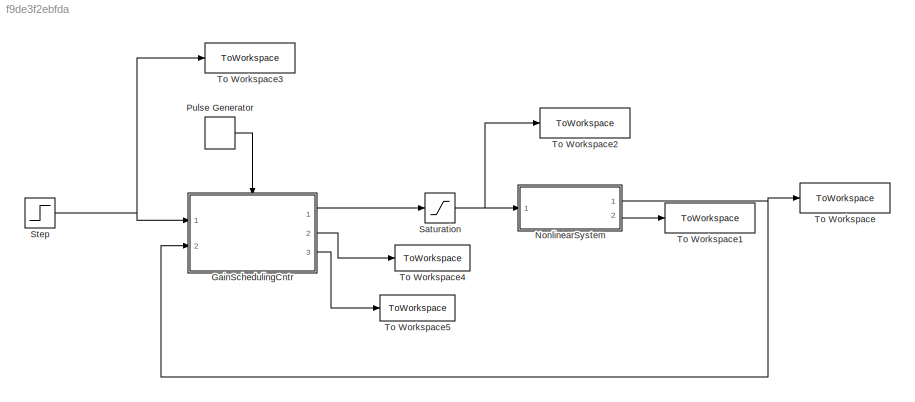
MODEL slx_f9de3f2ebfda
KIND model
CONFIG AbsTol = auto
CONFIG EnableMultiTasking = off
CONFIG FixedStep = auto
CONFIG MaxStep = auto
CONFIG MinStep = TSim/5000
CONFIG RelTol = 1e-3
CONFIG SampleTimeConstraint = Unconstrained
CONFIG SolverName = VariableStepAuto
CONFIG StartTime = 0.0
CONFIG StopTime = 10.0
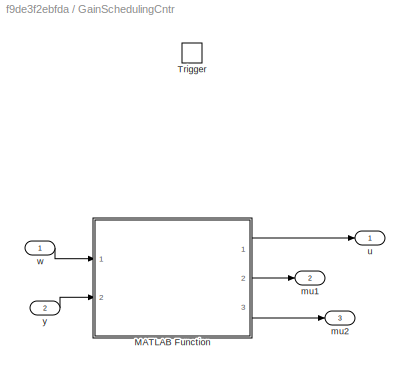
BLOCK [SubSystem] GainSchedulingCntr
  Ports = [2, 3, 0, 1]
  RequestExecContextInheritance = off
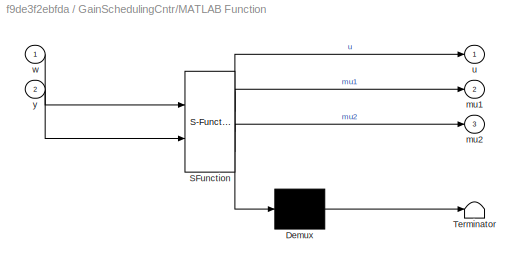
BLOCK [SubSystem] GainSchedulingCntr/MATLAB Function
  ErrorFcn = Stateflow.Translate.translate
  PermitHierarchicalResolution = ExplicitOnly
  Ports = [2, 3]
  RequestExecContextInheritance = off
  SFBlockType = MATLAB Function
  TreatAsAtomicUnit = on
BLOCK [Demux] GainSchedulingCntr/MATLAB Function/ Demux 
  Outputs = 1
  Ports = [1, 1]
BLOCK [S-Function] GainSchedulingCntr/MATLAB Function/ SFunction 
  EnableBusSupport = on
  FunctionName = sf_sfun
  Parameters = cntr
  PortCounts = [2 4]
  Ports = [2, 4]
  SFcnIsStateOwnerBlock = off
  SFunctionDeploymentMode = off
  Tag = Stateflow S-Function 1
BLOCK [Terminator] GainSchedulingCntr/MATLAB Function/ Terminator 
BLOCK [Outport] GainSchedulingCntr/MATLAB Function/mu1
  Port = 2
BLOCK [Outport] GainSchedulingCntr/MATLAB Function/mu2
  Port = 3
BLOCK [Outport] GainSchedulingCntr/MATLAB Function/u
BLOCK [Inport] GainSchedulingCntr/MATLAB Function/w
BLOCK [Inport] GainSchedulingCntr/MATLAB Function/y
  Port = 2
BLOCK [TriggerPort] GainSchedulingCntr/Trigger
  PortDimensions = 1
  Ports = []
  StatesWhenEnabling = held
  VariantControl = Variant
BLOCK [Outport] GainSchedulingCntr/mu1
  Port = 2
BLOCK [Outport] GainSchedulingCntr/mu2
  Port = 3
BLOCK [Outport] GainSchedulingCntr/u
BLOCK [Inport] GainSchedulingCntr/w
BLOCK [Inport] GainSchedulingCntr/y
  Port = 2
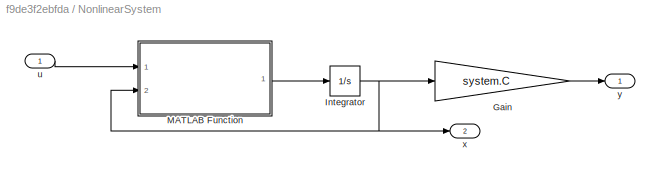
BLOCK [SubSystem] NonlinearSystem
  Ports = [1, 2]
  RequestExecContextInheritance = off
BLOCK [Gain] NonlinearSystem/Gain
  Gain = system.C
  Multiplication = Matrix(K*u) (u vector)
BLOCK [Integrator] NonlinearSystem/Integrator
  InitialCondition = xInit
  Ports = [1, 1]
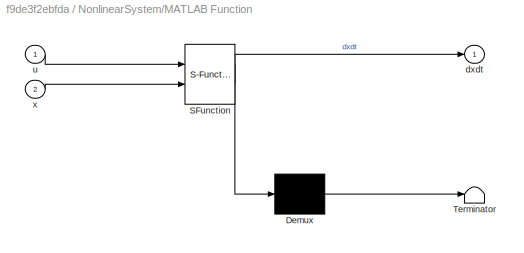
BLOCK [SubSystem] NonlinearSystem/MATLAB Function
  ErrorFcn = Stateflow.Translate.translate
  PermitHierarchicalResolution = ExplicitOnly
  Ports = [2, 1]
  RequestExecContextInheritance = off
  SFBlockType = MATLAB Function
  TreatAsAtomicUnit = on
BLOCK [Demux] NonlinearSystem/MATLAB Function/ Demux 
  Outputs = 1
  Ports = [1, 1]
BLOCK [S-Function] NonlinearSystem/MATLAB Function/ SFunction 
  EnableBusSupport = on
  FunctionName = sf_sfun
  PortCounts = [2 2]
  Ports = [2, 2]
  SFcnIsStateOwnerBlock = off
  SFunctionDeploymentMode = off
  Tag = Stateflow S-Function 2
BLOCK [Terminator] NonlinearSystem/MATLAB Function/ Terminator 
BLOCK [Outport] NonlinearSystem/MATLAB Function/dxdt
BLOCK [Inport] NonlinearSystem/MATLAB Function/u
BLOCK [Inport] NonlinearSystem/MATLAB Function/x
  Port = 2
BLOCK [Inport] NonlinearSystem/u
BLOCK [Outport] NonlinearSystem/x
  Port = 2
BLOCK [Outport] NonlinearSystem/y
BLOCK [DiscretePulseGenerator] Pulse Generator
  Period = cntr.TS
  Ports = [0, 1]
  PulseType = Time based
  PulseWidth = 50
BLOCK [Saturate] Saturation
  LowerLimit = -umax
  UpperLimit = umax
BLOCK [Step] Step
  After = refVal
  Before = initVal
  SampleTime = 0
  Time = tStep
BLOCK [ToWorkspace] To Workspace
  FixptAsFi = on
  MaxDataPoints = inf
  Ports = [1]
  SampleTime = -1
  SaveFormat = Structure With Time
  VariableName = output
BLOCK [ToWorkspace] To Workspace1
  FixptAsFi = on
  MaxDataPoints = inf
  Ports = [1]
  SampleTime = -1
  SaveFormat = Structure With Time
  VariableName = state
BLOCK [ToWorkspace] To Workspace2
  FixptAsFi = on
  MaxDataPoints = inf
  Ports = [1]
  SampleTime = -1
  SaveFormat = Structure With Time
  VariableName = input
BLOCK [ToWorkspace] To Workspace3
  FixptAsFi = on
  MaxDataPoints = inf
  Ports = [1]
  SampleTime = -1
  SaveFormat = Structure With Time
  VariableName = ref
BLOCK [ToWorkspace] To Workspace4
  FixptAsFi = on
  MaxDataPoints = inf
  Ports = [1]
  SampleTime = -1
  SaveFormat = Structure With Time
  VariableName = sched1
BLOCK [ToWorkspace] To Workspace5
  FixptAsFi = on
  MaxDataPoints = inf
  Ports = [1]
  SampleTime = -1
  SaveFormat = Structure With Time
  VariableName = sched2
LINE GainSchedulingCntr/MATLAB Function:1 -> GainSchedulingCntr/u:1
LINE GainSchedulingCntr/MATLAB Function:2 -> GainSchedulingCntr/mu1:1
LINE GainSchedulingCntr/MATLAB Function:3 -> GainSchedulingCntr/mu2:1
LINE GainSchedulingCntr/w:1 -> GainSchedulingCntr/MATLAB Function:1
LINE GainSchedulingCntr/y:1 -> GainSchedulingCntr/MATLAB Function:2
LINE GainSchedulingCntr:1 -> Saturation:1
LINE GainSchedulingCntr:2 -> To Workspace4:1
LINE GainSchedulingCntr:3 -> To Workspace5:1
LINE NonlinearSystem/Gain:1 -> NonlinearSystem/y:1
NET NonlinearSystem/Integrator:1 -> NonlinearSystem/Gain:1, NonlinearSystem/MATLAB Function:2, NonlinearSystem/x:1
LINE NonlinearSystem/MATLAB Function:1 -> NonlinearSystem/Integrator:1
LINE NonlinearSystem/u:1 -> NonlinearSystem/MATLAB Function:1
NET NonlinearSystem:1 -> GainSchedulingCntr:2, To Workspace:1
LINE NonlinearSystem:2 -> To Workspace1:1
LINE Pulse Generator:1 -> GainSchedulingCntr:trigger
NET Saturation:1 -> NonlinearSystem:1, To Workspace2:1
NET Step:1 -> GainSchedulingCntr:1, To Workspace3:1
note: NET lines group one-source signal fan-out (src -> all destinations, sorted); 1:1 wires keep LINE
CHART GainSchedulingCntr/MATLAB Function states=1 transitions=1
  STATE_LABEL 'eML_blk_kernel()'
  STATE_LABEL 'SCRIPT:\nfunction [u, mu1, mu2]  = gainSchedulingCntr( w, y,  cntr)\n  % This function implements a discretized version of a gain-scheduling  \n  % controller designed to work in between two operating points\n  % The controller relies on control signal blending and requires an\n  % anti-windup to operate reliable/without performance degradations\n  % However, anti-windup can be deactivated setting cntr....<+3583ch>'
CHART NonlinearSystem/MATLAB Function states=1 transitions=1
  STATE_LABEL 'eML_blk_kernel()'
  STATE_LABEL 'SCRIPT:\nfunction dxdt  = fcn(u, x)\n    dxdt = zeros(2,1);    \n\n    \n   \n    dxdt(1) = x(2);\n    dxdt(2) = x(1)*(1-x(2))+u;\n    \n'
CHART  states=0 transitions=0
CHART  states=0 transitions=0
